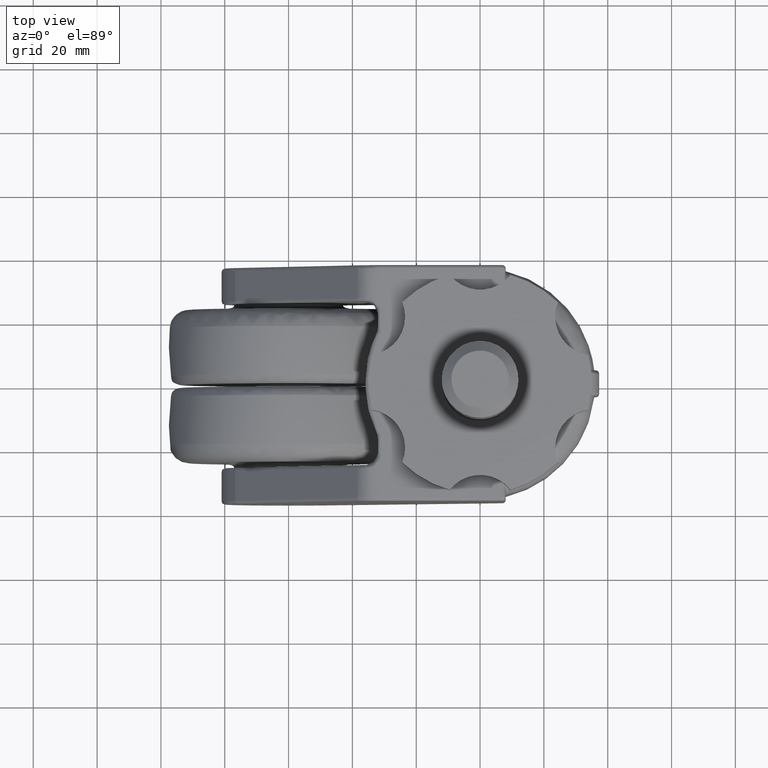
[diagram: clean part render]
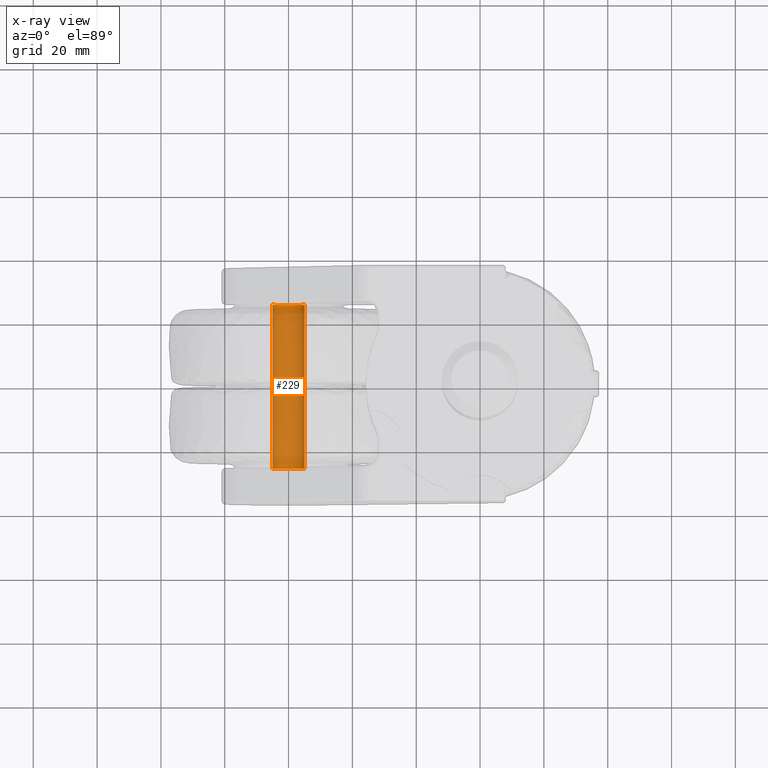
[diagram: x-ray — body ghosted, one internal face saturated and labeled with its STEP entity id]
A machine part, top view, then the same camera in x-ray: the body is ghosted and one INTERNAL B-rep face — a face not visible from any outside direction — is saturated and labeled: STEP entity #229.
In plain terms, the highlighted face is a freeform B-spline surface patch.
Its self-contained STEP definition (entity closure, byte-faithful):
#64=CARTESIAN_POINT('',(-55.038668971975781,25.649999999999999,-73.879359661024139));
#65=VERTEX_POINT('',#64);
#79=CARTESIAN_POINT('',(-55.038668930891291,-25.649999999999999,-73.879359989449028));
#80=VERTEX_POINT('',#79);
#81=CARTESIAN_POINT('',(-55.038668971975781,25.649999999999999,-73.879359661024139));
#82=CARTESIAN_POINT('',(-55.038668930891291,-25.649999999999999,-73.879359989449028));
#83=QUASI_UNIFORM_CURVE('',1,(#81,#82),.UNSPECIFIED.,.F.,.U.);
#84=EDGE_CURVE('',#65,#80,#83,.T.);
#101=CARTESIAN_POINT('',(-64.999809615314547,-25.649999999999999,-74.543632678213726));
#102=VERTEX_POINT('',#101);
#118=CARTESIAN_POINT('',(-64.999809615315030,25.649999999999999,-74.543632678158588));
#119=VERTEX_POINT('',#118);
#120=CARTESIAN_POINT('',(-64.999809615315030,25.649999999999999,-74.543632678158588));
#121=CARTESIAN_POINT('',(-64.999809615314547,-25.649999999999999,-74.543632678213726));
#122=QUASI_UNIFORM_CURVE('',1,(#120,#121),.UNSPECIFIED.,.F.,.U.);
#123=EDGE_CURVE('',#119,#102,#122,.T.);
#143=CARTESIAN_POINT('',(-64.999809615320856,26.932500000000012,-74.543632677491871));
#144=CARTESIAN_POINT('',(-64.956176937828985,26.932500000000012,-79.543442292812728));
#145=CARTESIAN_POINT('',(-59.956367322508129,26.932500000000012,-79.499809615320856));
#146=CARTESIAN_POINT('',(-54.956557707187280,26.932500000000012,-79.456176937828985));
#147=CARTESIAN_POINT('',(-55.000190384679136,26.932500000000012,-74.456367322508129));
#148=CARTESIAN_POINT('',(-55.002717843698619,26.932500000000005,-74.166749205209129));
#149=CARTESIAN_POINT('',(-55.038668930872305,26.932500000000005,-73.879359989600857));
#150=CARTESIAN_POINT('',(-64.999809615320856,-26.964562500000010,-74.543632677491871));
#151=CARTESIAN_POINT('',(-64.956176937828985,-26.964562500000007,-79.543442292812728));
#152=CARTESIAN_POINT('',(-59.956367322508129,-26.964562500000010,-79.499809615320856));
#153=CARTESIAN_POINT('',(-54.956557707187280,-26.964562500000007,-79.456176937828985));
#154=CARTESIAN_POINT('',(-55.000190384679136,-26.964562500000010,-74.456367322508129));
#155=CARTESIAN_POINT('',(-55.002717843698619,-26.964562500000010,-74.166749205209129));
#156=CARTESIAN_POINT('',(-55.038668930872305,-26.964562500000007,-73.879359989600857));
#164=(BOUNDED_SURFACE()B_SPLINE_SURFACE(2,1,((#143,#150),(#144,#151),(#145,#152),(#146,#153),(#147,#154),(#148,#155),(#149,#156)),.UNSPECIFIED.,.F.,.F.,.U.)B_SPLINE_SURFACE_WITH_KNOTS((3,2,2,3),(2,2),(0.0,8.284271247461902,16.568542494923800,17.231284194720761),(0.0,53.897062500000018),.UNSPECIFIED.)GEOMETRIC_REPRESENTATION_ITEM()RATIONAL_B_SPLINE_SURFACE(((1.0,1.0),(0.707106781186548,0.707106781186548),(1.0,1.0),(0.707106781186548,0.707106781186548),(1.0,1.0),(0.976568542494924,0.976568542494924),(0.956886118190660,0.956886118190660)))REPRESENTATION_ITEM('')SURFACE());
#165=CARTESIAN_POINT('',(-60.0,25.649999999999999,-79.500000000000000));
#166=VERTEX_POINT('',#165);
#167=CARTESIAN_POINT('',(-55.038668971975781,25.649999999999995,-73.879359661024139));
#168=CARTESIAN_POINT('',(-55.0,25.650000000000006,-74.188475029909426));
#169=CARTESIAN_POINT('',(-55.0,25.649999999999999,-74.500000000000000));
#170=CARTESIAN_POINT('',(-55.000000000000007,25.650000000000006,-79.500000000000014));
#171=CARTESIAN_POINT('',(-60.0,25.649999999999999,-79.500000000000000));
#179=(BOUNDED_CURVE()B_SPLINE_CURVE(2,(#167,#168,#169,#170,#171),.UNSPECIFIED.,.F.,.U.)B_SPLINE_CURVE_WITH_KNOTS((3,2,3),(0.228526048691292,0.250000000000000,0.500000000000000),.UNSPECIFIED.)CURVE()GEOMETRIC_REPRESENTATION_ITEM()RATIONAL_B_SPLINE_CURVE((0.954005386925288,0.974841701122197,1.0,0.707106781186548,1.0))REPRESENTATION_ITEM(''));
#180=EDGE_CURVE('',#65,#166,#179,.T.);
#181=ORIENTED_EDGE('',*,*,#180,.T.);
#182=CARTESIAN_POINT('',(-60.0,25.649999999999999,-79.500000000000000));
#183=CARTESIAN_POINT('',(-64.956556051652925,25.650000000000009,-79.500000000000028));
#184=CARTESIAN_POINT('',(-64.999809615315030,25.650000000000002,-74.543632678158588));
#192=(BOUNDED_CURVE()B_SPLINE_CURVE(2,(#182,#183,#184),.UNSPECIFIED.,.F.,.U.)B_SPLINE_CURVE_WITH_KNOTS((3,3),(0.500000000000000,0.748460105618036),.UNSPECIFIED.)CURVE()GEOMETRIC_REPRESENTATION_ITEM()RATIONAL_B_SPLINE_CURVE((1.0,0.708910879675213,0.996414027991688))REPRESENTATION_ITEM(''));
#193=EDGE_CURVE('',#166,#119,#192,.T.);
#194=ORIENTED_EDGE('',*,*,#193,.T.);
#195=ORIENTED_EDGE('',*,*,#123,.T.);
#196=CARTESIAN_POINT('',(-60.0,-25.649999999999999,-79.500000000000000));
#197=VERTEX_POINT('',#196);
#198=CARTESIAN_POINT('',(-64.999809615314547,-25.649999999999995,-74.543632678213726));
#199=CARTESIAN_POINT('',(-64.956556051543586,-25.650000000000002,-79.500000000000000));
#200=CARTESIAN_POINT('',(-60.0,-25.649999999999999,-79.500000000000000));
#208=(BOUNDED_CURVE()B_SPLINE_CURVE(2,(#198,#199,#200),.UNSPECIFIED.,.F.,.U.)B_SPLINE_CURVE_WITH_KNOTS((3,3),(0.751539894385850,1.0),.UNSPECIFIED.)CURVE()GEOMETRIC_REPRESENTATION_ITEM()RATIONAL_B_SPLINE_CURVE((0.996414027982695,0.708910879679765,1.0))REPRESENTATION_ITEM(''));
#209=EDGE_CURVE('',#102,#197,#208,.T.);
#210=ORIENTED_EDGE('',*,*,#209,.T.);
#211=CARTESIAN_POINT('',(-60.0,-25.649999999999999,-79.500000000000000));
#212=CARTESIAN_POINT('',(-55.000000000000007,-25.650000000000006,-79.500000000000014));
#213=CARTESIAN_POINT('',(-55.0,-25.649999999999999,-74.500000000000000));
#214=CARTESIAN_POINT('',(-55.000000000000007,-25.650000000000002,-74.188475362178949));
#215=CARTESIAN_POINT('',(-55.038668930891291,-25.650000000000002,-73.879359989449028));
#223=(BOUNDED_CURVE()B_SPLINE_CURVE(2,(#211,#212,#213,#214,#215),.UNSPECIFIED.,.F.,.U.)B_SPLINE_CURVE_WITH_KNOTS((3,2,3),(0.0,0.250000000000000,0.271473928981022),.UNSPECIFIED.)CURVE()GEOMETRIC_REPRESENTATION_ITEM()RATIONAL_B_SPLINE_CURVE((1.0,0.707106781186548,1.0,0.974841727280708,0.954005430254689))REPRESENTATION_ITEM(''));
#224=EDGE_CURVE('',#197,#80,#223,.T.);
#225=ORIENTED_EDGE('',*,*,#224,.T.);
#226=ORIENTED_EDGE('',*,*,#84,.F.);
#227=EDGE_LOOP('',(#181,#194,#195,#210,#225,#226));
#228=FACE_OUTER_BOUND('',#227,.T.);
#229=ADVANCED_FACE('',(#228),#164,.F.);